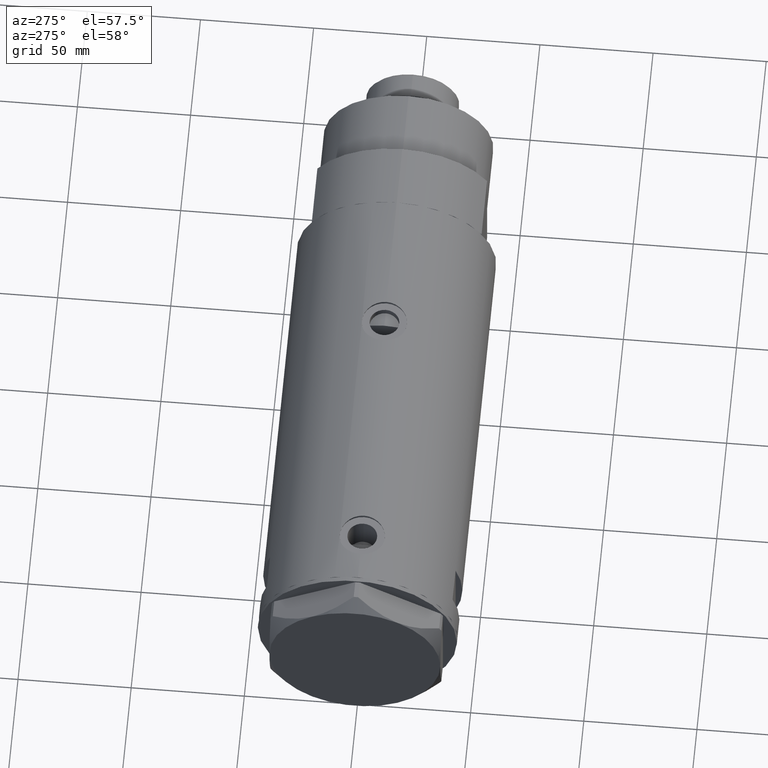
[diagram: clean part render]
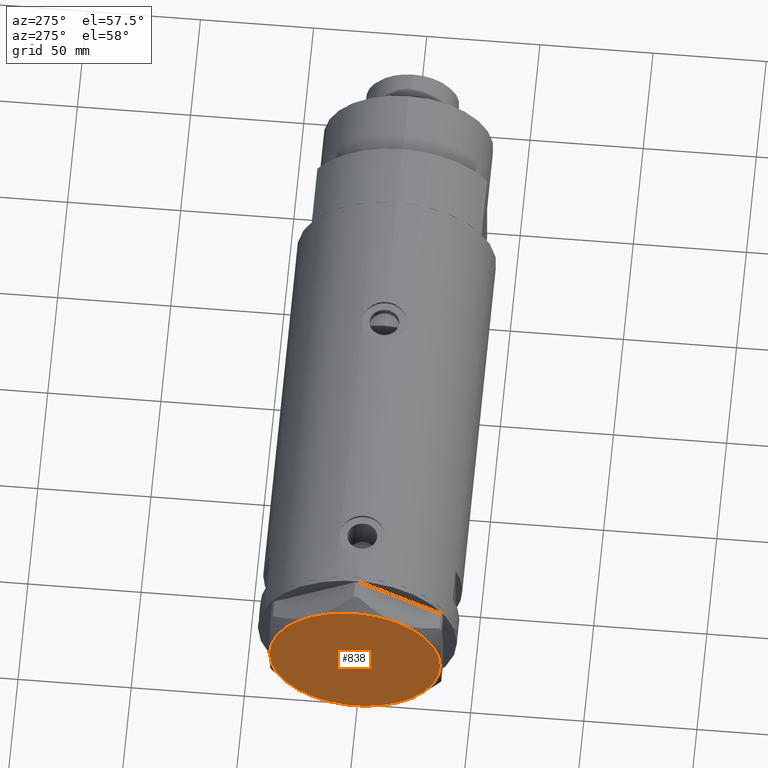
[diagram: same view with one face highlighted and labeled with its STEP entity id]
A machine part, auxiliary view. The second image highlights one B-rep face of the part: STEP entity #838.
In plain terms, the highlighted planar face has unit normal (-1, -0, 0).
Its self-contained STEP definition (entity closure, byte-faithful):
#173 = EDGE_CURVE ( 'NONE', #764, #891, #375, .T. ) ;
#369 = DIRECTION ( 'NONE',  ( 0.000000000000000000, 0.000000000000000000, 1.000000000000000000 ) ) ;
#375 = CIRCLE ( 'NONE', #1495, 37.75000000000000000 ) ;
#417 = CARTESIAN_POINT ( 'NONE',  ( -37.75000000000000000, -1.201851678989727067E-14, 13.00000000000000000 ) ) ;
#464 = EDGE_CURVE ( 'NONE', #4258, #3650, #2818, .T. ) ;
#472 = CIRCLE ( 'NONE', #1671, 37.75000000000000000 ) ;
#507 = EDGE_CURVE ( 'NONE', #4310, #764, #3408, .T. ) ;
#570 = ORIENTED_EDGE ( 'NONE', *, *, #4223, .T. ) ;
#576 = ORIENTED_EDGE ( 'NONE', *, *, #173, .T. ) ;
#577 = CARTESIAN_POINT ( 'NONE',  ( 37.75000000000000711, 1.802777518484591547E-14, 13.00000000000000000 ) ) ;
#581 = CARTESIAN_POINT ( 'NONE',  ( 18.87500000000000000, 32.69245899286255508, 13.00000000000000000 ) ) ;
#625 = DIRECTION ( 'NONE',  ( 0.000000000000000000, 0.000000000000000000, 1.000000000000000000 ) ) ;
#676 = DIRECTION ( 'NONE',  ( 1.000000000000000000, 0.000000000000000000, 0.000000000000000000 ) ) ;
#693 = FACE_OUTER_BOUND ( 'NONE', #2013, .T. ) ;
#745 = CARTESIAN_POINT ( 'NONE',  ( 0.000000000000000000, 0.000000000000000000, 13.00000000000000000 ) ) ;
#764 = VERTEX_POINT ( 'NONE', #3807 ) ;
#799 = VERTEX_POINT ( 'NONE', #4463 ) ;
#824 = AXIS2_PLACEMENT_3D ( 'NONE', #2822, #3795, #676 ) ;
#831 = DIRECTION ( 'NONE',  ( 1.000000000000000000, 0.000000000000000000, 0.000000000000000000 ) ) ;
#838 = ADVANCED_FACE ( 'NONE', ( #693 ), #1068, .T. ) ;
#891 = VERTEX_POINT ( 'NONE', #3843 ) ;
#950 = AXIS2_PLACEMENT_3D ( 'NONE', #3772, #625, #1366 ) ;
#1020 = CIRCLE ( 'NONE', #950, 37.75000000000000000 ) ;
#1068 = PLANE ( 'NONE',  #3758 ) ;
#1366 = DIRECTION ( 'NONE',  ( 1.000000000000000000, 0.000000000000000000, 0.000000000000000000 ) ) ;
#1427 = DIRECTION ( 'NONE',  ( 1.000000000000000000, 0.000000000000000000, 0.000000000000000000 ) ) ;
#1463 = ORIENTED_EDGE ( 'NONE', *, *, #464, .T. ) ;
#1495 = AXIS2_PLACEMENT_3D ( 'NONE', #2715, #2735, #3080 ) ;
#1528 = CARTESIAN_POINT ( 'NONE',  ( 0.000000000000000000, 0.000000000000000000, 13.00000000000000000 ) ) ;
#1671 = AXIS2_PLACEMENT_3D ( 'NONE', #1528, #2677, #2999 ) ;
#1996 = DIRECTION ( 'NONE',  ( 0.000000000000000000, 0.000000000000000000, 1.000000000000000000 ) ) ;
#2013 = EDGE_LOOP ( 'NONE', ( #2670, #1463, #570, #2938, #2599, #576 ) ) ;
#2253 = AXIS2_PLACEMENT_3D ( 'NONE', #2527, #369, #1427 ) ;
#2467 = CARTESIAN_POINT ( 'NONE',  ( 0.000000000000000000, 0.000000000000000000, 13.00000000000000000 ) ) ;
#2495 = DIRECTION ( 'NONE',  ( 0.000000000000000000, 0.000000000000000000, 1.000000000000000000 ) ) ;
#2496 = EDGE_CURVE ( 'NONE', #891, #4258, #472, .T. ) ;
#2527 = CARTESIAN_POINT ( 'NONE',  ( 0.000000000000000000, 0.000000000000000000, 13.00000000000000000 ) ) ;
#2599 = ORIENTED_EDGE ( 'NONE', *, *, #507, .T. ) ;
#2670 = ORIENTED_EDGE ( 'NONE', *, *, #2496, .T. ) ;
#2677 = DIRECTION ( 'NONE',  ( 0.000000000000000000, 0.000000000000000000, 1.000000000000000000 ) ) ;
#2715 = CARTESIAN_POINT ( 'NONE',  ( 0.000000000000000000, 0.000000000000000000, 13.00000000000000000 ) ) ;
#2735 = DIRECTION ( 'NONE',  ( 0.000000000000000000, 0.000000000000000000, 1.000000000000000000 ) ) ;
#2818 = CIRCLE ( 'NONE', #824, 37.75000000000000000 ) ;
#2822 = CARTESIAN_POINT ( 'NONE',  ( 0.000000000000000000, 0.000000000000000000, 13.00000000000000000 ) ) ;
#2938 = ORIENTED_EDGE ( 'NONE', *, *, #3887, .T. ) ;
#2999 = DIRECTION ( 'NONE',  ( 1.000000000000000000, 0.000000000000000000, 0.000000000000000000 ) ) ;
#3080 = DIRECTION ( 'NONE',  ( 1.000000000000000000, 0.000000000000000000, 0.000000000000000000 ) ) ;
#3082 = CIRCLE ( 'NONE', #2253, 37.75000000000000000 ) ;
#3408 = CIRCLE ( 'NONE', #3538, 37.75000000000000000 ) ;
#3415 = DIRECTION ( 'NONE',  ( 1.000000000000000000, 0.000000000000000000, -0.000000000000000000 ) ) ;
#3538 = AXIS2_PLACEMENT_3D ( 'NONE', #745, #2495, #831 ) ;
#3650 = VERTEX_POINT ( 'NONE', #581 ) ;
#3758 = AXIS2_PLACEMENT_3D ( 'NONE', #2467, #1996, #3415 ) ;
#3772 = CARTESIAN_POINT ( 'NONE',  ( 0.000000000000000000, 0.000000000000000000, 13.00000000000000000 ) ) ;
#3795 = DIRECTION ( 'NONE',  ( 0.000000000000000000, 0.000000000000000000, 1.000000000000000000 ) ) ;
#3807 = CARTESIAN_POINT ( 'NONE',  ( -18.87499999999999645, -32.69245899286255508, 13.00000000000000000 ) ) ;
#3843 = CARTESIAN_POINT ( 'NONE',  ( 18.87499999999998579, -32.69245899286256218, 13.00000000000000000 ) ) ;
#3887 = EDGE_CURVE ( 'NONE', #799, #4310, #3082, .T. ) ;
#4223 = EDGE_CURVE ( 'NONE', #3650, #799, #1020, .T. ) ;
#4258 = VERTEX_POINT ( 'NONE', #577 ) ;
#4310 = VERTEX_POINT ( 'NONE', #417 ) ;
#4463 = CARTESIAN_POINT ( 'NONE',  ( -18.87499999999999645, 32.69245899286256218, 13.00000000000000000 ) ) ;